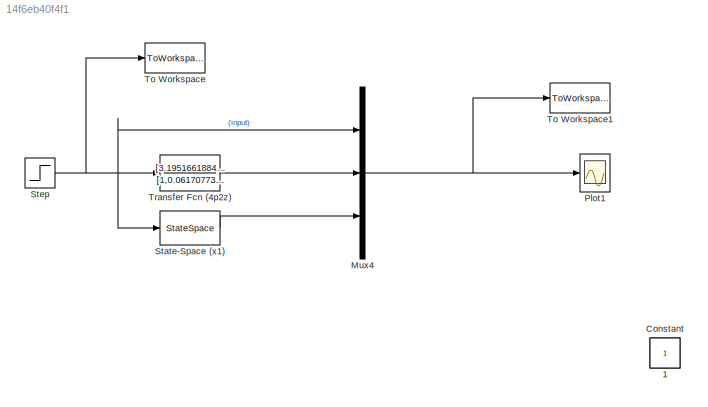
MODEL slx_14f6eb40f4f1
KIND model
CONFIG AbsTol = auto
CONFIG FixedStep = auto
CONFIG MaxStep = auto
CONFIG MinStep = auto
CONFIG RelTol = 1e-3
CONFIG SampleTimeConstraint = Unconstrained
CONFIG Solver = ode45
CONFIG SolverMode = Auto
CONFIG SolverName = ode45
CONFIG StartFcn = clear all
CONFIG StartTime = 0.0
CONFIG StopTime = 700
BLOCK [Constant] 1
  IOType = siggen
BLOCK [Constant] Constant
  IOType = siggen
BLOCK [Mux] Mux4
  DisplayOption = bar
  Inputs = 3
  Ports = [3, 1]
BLOCK [Scope] Plot1
  Ports = [1]
  ScopeSpecificationString = Simulink.scopes.TimeScopeBlockCfg('CurrentConfiguration', extmgr.ConfigurationSet(extmgr.Configuration('Core','General UI',true,'FigureColor',[0.156862745098039 0.156862745098039 0.156862745098039]),extmgr.Configuration('Core','Source UI',true),extmgr.Configuration('Sources','WiredSimulink',true,'DataLoggingLimitDataPoints',true,'DataLoggingSaveFormat','Array','DataLoggingDecimation','1','DataLogg...<+3189ch>
BLOCK [StateSpace] State-Space (x1)
  A = -0.005070611210911
  B = 1.068970183519867e-05
  C = 3.695395325035177e+02
  D = 0
  Ports = [1, 1]
  X0 = 0.004775767159700
BLOCK [Step] Step
  After = 70
  SampleTime = 0
  Time = 50
BLOCK [ToWorkspace] To Workspace
  FixptAsFi = on
  MaxDataPoints = inf
  Ports = [1]
  SampleTime = -1
  Save2DSignal = 3-D array (concatenate along third dimension)
  SaveFormat = Timeseries
  VariableName = input
BLOCK [ToWorkspace] To Workspace1
  FixptAsFi = on
  MaxDataPoints = inf
  Ports = [1]
  SampleTime = -1
  Save2DSignal = 3-D array (concatenate along third dimension)
  SaveFormat = Timeseries
  VariableName = output
BLOCK [TransferFcn] Transfer Fcn (4p2z)
  Denominator = [1,0.061707735245560,6.381421465415211e-04,1.302629951453399e-05,9.014635524611083e-08]
  Numerator = [3.195166188443881e-04,-7.093012858467532e-08,6.765608163907508e-08]
NET Mux4:1 -> Plot1:1, To Workspace1:1
LINE State-Space (x1):1 -> Mux4:3
NET Step:1 -> Mux4:1, State-Space (x1):1, To Workspace:1, Transfer Fcn (4p2z):1
LINE Transfer Fcn (4p2z):1 -> Mux4:2
note: NET lines group one-source signal fan-out (src -> all destinations, sorted); 1:1 wires keep LINE
